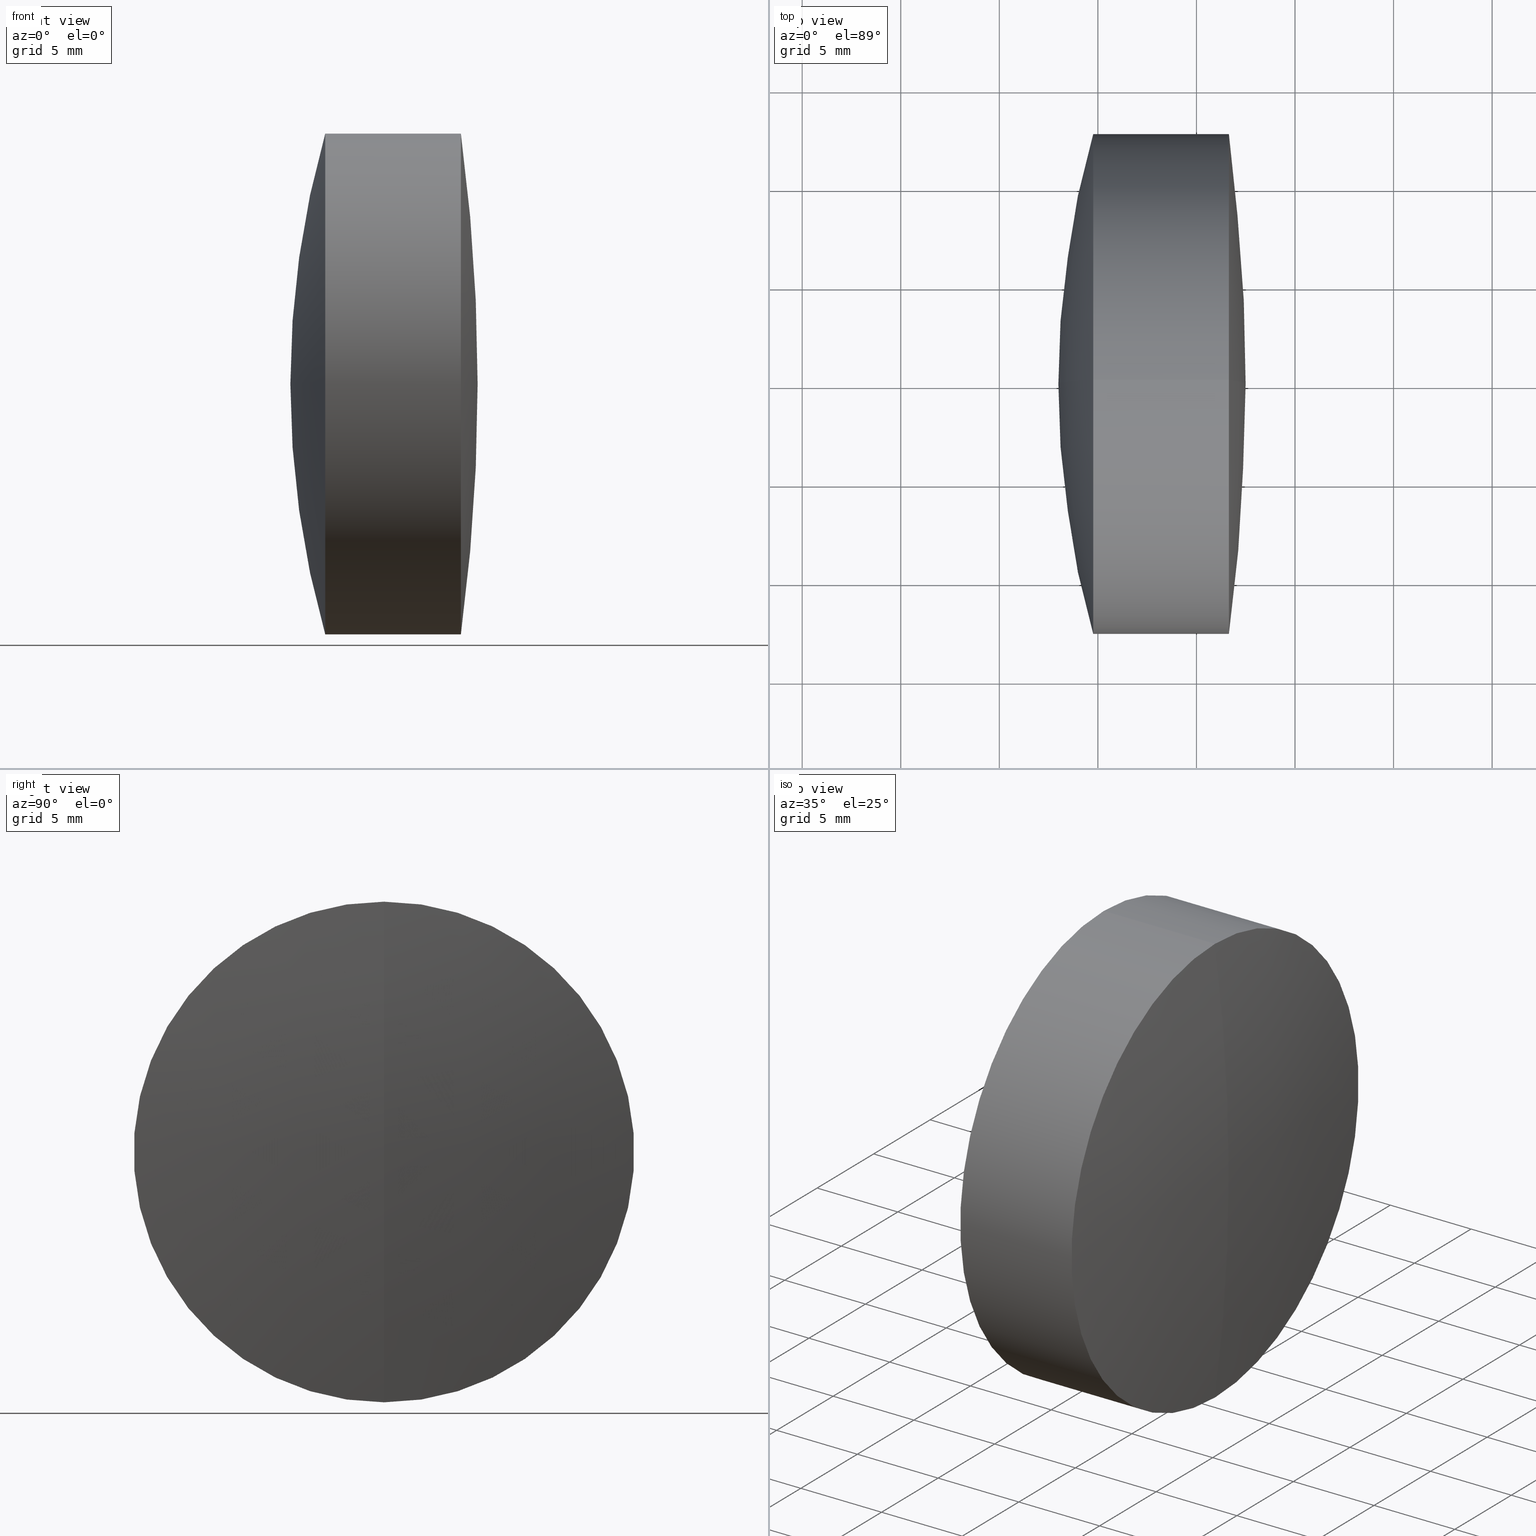
[diagram: canonical four-view strip — front | top / right | iso, engineering-drawing reading convention]
A machine part, canonical four-view strip (front | top / right | iso — engineering-drawing reading convention). The complete STEP part file that produces these views, byte-faithful:
ISO-10303-21;
HEADER;
FILE_DESCRIPTION (( 'STEP AP214' ),
    '1' );
FILE_NAME ('145056.STEP',
    '2019-05-13T08:34:13',
    ( 'user' ),
    ( '΢���й�' ),
    'SwSTEP 2.0',
    'SolidWorks 2016',
    '' );
FILE_SCHEMA (( 'AUTOMOTIVE_DESIGN' ));
ENDSEC;

DATA;
#1 = AXIS2_PLACEMENT_3D ( 'NONE', #251, #217, #246 ) ;
#2 = CARTESIAN_POINT ( 'NONE',  ( 211.0958458084194300, 0.0000000000000000000, -3.185954776904472300E-015 ) ) ;
#3 = EDGE_LOOP ( 'NONE', ( #334, #54, #169, #271 ) ) ;
#4 = DIRECTION ( 'NONE',  ( 0.0000000000000000000, 0.0000000000000000000, 1.000000000000000000 ) ) ;
#5 = AXIS2_PLACEMENT_3D ( 'NONE', #268, #145, #336 ) ;
#6 = DIRECTION ( 'NONE',  ( -1.000000000000000000, -0.0000000000000000000, -0.0000000000000000000 ) ) ;
#7 =( NAMED_UNIT ( * ) PLANE_ANGLE_UNIT ( ) SI_UNIT ( $, .RADIAN. ) );
#8 = AXIS2_PLACEMENT_3D ( 'NONE', #249, #315, #22 ) ;
#9 = PRODUCT_DEFINITION_FORMATION_WITH_SPECIFIED_SOURCE ( '�κ�', '', #265, .NOT_KNOWN. ) ;
#10 = COLOUR_RGB ( '',1.000000000000000000, 1.000000000000000000, 1.000000000000000000 ) ;
#11 = EDGE_CURVE ( 'NONE', #52, #29, #181, .T. ) ;
#12 = ORIENTED_EDGE ( 'NONE', *, *, #70, .F. ) ;
#13 = AXIS2_PLACEMENT_3D ( 'NONE', #302, #214, #212 ) ;
#14 = SURFACE_STYLE_USAGE ( .BOTH. , #194 ) ;
#15 = EDGE_LOOP ( 'NONE', ( #61, #326, #100 ) ) ;
#16 = SPHERICAL_SURFACE ( 'NONE', #86, 33.89999999999998400 ) ;
#17 = AXIS2_PLACEMENT_3D ( 'NONE', #56, #73, #48 ) ;
#18 = ORIENTED_EDGE ( 'NONE', *, *, #301, .F. ) ;
#19 = APPLICATION_PROTOCOL_DEFINITION ( 'draft international standard', 'automotive_design', 1998, #289 ) ;
#20 = DIRECTION ( 'NONE',  ( 0.0000000000000000000, 1.000000000000000000, 0.0000000000000000000 ) ) ;
#21 = ADVANCED_FACE ( 'NONE', ( #78 ), #175, .T. ) ;
#22 = DIRECTION ( 'NONE',  ( 0.0000000000000000000, 0.0000000000000000000, 1.000000000000000000 ) ) ;
#23 = ORIENTED_EDGE ( 'NONE', *, *, #258, .T. ) ;
#24 = CARTESIAN_POINT ( 'NONE',  ( 246.6476286759386200, 0.0000000000000000000, 0.0000000000000000000 ) ) ;
#25 = FILL_AREA_STYLE_COLOUR ( '', #105 ) ;
#26 = EDGE_CURVE ( 'NONE', #96, #280, #209, .T. ) ;
#27 = DIRECTION ( 'NONE',  ( 0.0000000000000000000, 0.0000000000000000000, 1.000000000000000000 ) ) ;
#28 = FILL_AREA_STYLE ('',( #132 ) ) ;
#29 = VERTEX_POINT ( 'NONE', #189 ) ;
#30 = DIRECTION ( 'NONE',  ( 0.0000000000000000000, -1.224646799147353200E-016, 1.000000000000000000 ) ) ;
#31 = CARTESIAN_POINT ( 'NONE',  ( 211.0958458084194300, 0.0000000000000000000, -3.185954776904472300E-015 ) ) ;
#32 = CARTESIAN_POINT ( 'NONE',  ( 211.0958458084194300, 0.0000000000000000000, -3.185954776904472300E-015 ) ) ;
#33 = CIRCLE ( 'NONE', #141, 12.69999999999999600 ) ;
#34 = ORIENTED_EDGE ( 'NONE', *, *, #67, .F. ) ;
#35 = ORIENTED_EDGE ( 'NONE', *, *, #101, .T. ) ;
#36 = FACE_OUTER_BOUND ( 'NONE', #151, .T. ) ;
#37 = ORIENTED_EDGE ( 'NONE', *, *, #193, .T. ) ;
#38 = EDGE_CURVE ( 'NONE', #307, #224, #72, .T. ) ;
#39 = EDGE_LOOP ( 'NONE', ( #285, #299, #45 ) ) ;
#40 = CARTESIAN_POINT ( 'NONE',  ( 161.8331716928335000, 0.0000000000000000000, 0.0000000000000000000 ) ) ;
#41 = AXIS2_PLACEMENT_3D ( 'NONE', #278, #277, #238 ) ;
#42 = DIRECTION ( 'NONE',  ( 0.0000000000000000000, 0.0000000000000000000, -1.000000000000000000 ) ) ;
#43 = UNCERTAINTY_MEASURE_WITH_UNIT (LENGTH_MEASURE( 1.000000000000000100E-005 ), #174, 'distance_accuracy_value', 'NONE');
#44 = CARTESIAN_POINT ( 'NONE',  ( 242.5270405041353300, 0.0000000000000000000, 12.69999999999999200 ) ) ;
#45 = ORIENTED_EDGE ( 'NONE', *, *, #339, .F. ) ;
#46 = VERTEX_POINT ( 'NONE', #158 ) ;
#47 = LINE ( 'NONE', #77, #110 ) ;
#48 = DIRECTION ( 'NONE',  ( 0.0000000000000000000, 0.0000000000000000000, 1.000000000000000000 ) ) ;
#49 = AXIS2_PLACEMENT_3D ( 'NONE', #24, #59, #104 ) ;
#50 = DIRECTION ( 'NONE',  ( -1.000000000000000000, -0.0000000000000000000, -0.0000000000000000000 ) ) ;
#51 =( NAMED_UNIT ( * ) PLANE_ANGLE_UNIT ( ) SI_UNIT ( $, .RADIAN. ) );
#52 = VERTEX_POINT ( 'NONE', #127 ) ;
#53 = UNCERTAINTY_MEASURE_WITH_UNIT (LENGTH_MEASURE( 1.000000000000000100E-005 ), #66, 'distance_accuracy_value', 'NONE');
#54 = ORIENTED_EDGE ( 'NONE', *, *, #235, .T. ) ;
#55 = VERTEX_POINT ( 'NONE', #340 ) ;
#56 = CARTESIAN_POINT ( 'NONE',  ( 284.4958458084194000, 0.0000000000000000000, -3.503633151461065400E-015 ) ) ;
#57 = CIRCLE ( 'NONE', #13, 12.69999999999998900 ) ;
#58 = DIRECTION ( 'NONE',  ( -1.000000000000000000, -0.0000000000000000000, -0.0000000000000000000 ) ) ;
#59 = DIRECTION ( 'NONE',  ( -1.000000000000000000, -0.0000000000000000000, -0.0000000000000000000 ) ) ;
#60 = PRODUCT_DEFINITION_SHAPE ( 'NONE', 'NONE',  #126 ) ;
#61 = ORIENTED_EDGE ( 'NONE', *, *, #173, .F. ) ;
#62 = EDGE_CURVE ( 'NONE', #46, #160, #243, .T. ) ;
#63 = PRESENTATION_LAYER_ASSIGNMENT (  '', '', ( #133 ) ) ;
#64 = CIRCLE ( 'NONE', #188, 46.50000000000003600 ) ;
#65 = SPHERICAL_SURFACE ( 'NONE', #148, 33.89999999999998400 ) ;
#66 =( LENGTH_UNIT ( ) NAMED_UNIT ( * ) SI_UNIT ( .MILLI., .METRE. ) );
#67 = EDGE_CURVE ( 'NONE', #224, #237, #64, .T. ) ;
#68 = COLOUR_RGB ( '',1.000000000000000000, 1.000000000000000000, 1.000000000000000000 ) ;
#69 = SURFACE_SIDE_STYLE ('',( #90 ) ) ;
#70 = EDGE_CURVE ( 'NONE', #46, #259, #284, .T. ) ;
#71 = ORIENTED_EDGE ( 'NONE', *, *, #82, .T. ) ;
#72 = CIRCLE ( 'NONE', #229, 12.69999999999999600 ) ;
#73 = DIRECTION ( 'NONE',  ( 0.0000000000000000000, 1.000000000000000000, 0.0000000000000000000 ) ) ;
#74 = EDGE_CURVE ( 'NONE', #224, #307, #186, .T. ) ;
#75 = CARTESIAN_POINT ( 'NONE',  ( 211.0958458084194300, 0.0000000000000000000, -3.185954776904472300E-015 ) ) ;
#76 = PRODUCT_RELATED_PRODUCT_CATEGORY ( 'part', '', ( #265 ) ) ;
#77 = CARTESIAN_POINT ( 'NONE',  ( 161.8331716928335000, 1.555301434917138000E-015, -12.69999999999999600 ) ) ;
#78 = FACE_OUTER_BOUND ( 'NONE', #39, .T. ) ;
#79 = EDGE_LOOP ( 'NONE', ( #219, #195, #295 ) ) ;
#80 = SURFACE_SIDE_STYLE ('',( #129 ) ) ;
#81 = CIRCLE ( 'NONE', #109, 12.69999999999999200 ) ;
#82 = EDGE_CURVE ( 'NONE', #259, #224, #179, .T. ) ;
#83 = DIRECTION ( 'NONE',  ( 0.0000000000000000000, 0.0000000000000000000, 1.000000000000000000 ) ) ;
#84 = UNCERTAINTY_MEASURE_WITH_UNIT (LENGTH_MEASURE( 1.000000000000000100E-005 ), #116, 'distance_accuracy_value', 'NONE');
#85 = ADVANCED_BREP_SHAPE_REPRESENTATION ( '145056', ( #269, #333, #5 ), #232 ) ;
#86 = AXIS2_PLACEMENT_3D ( 'NONE', #190, #163, #264 ) ;
#87 = DIRECTION ( 'NONE',  ( -1.000000000000000000, -0.0000000000000000000, -0.0000000000000000000 ) ) ;
#88 = DIRECTION ( 'NONE',  ( 0.0000000000000000000, -1.224646799147353200E-016, 1.000000000000000000 ) ) ;
#89 = FACE_OUTER_BOUND ( 'NONE', #15, .T. ) ;
#90 = SURFACE_STYLE_FILL_AREA ( #245 ) ;
#91 = FACE_OUTER_BOUND ( 'NONE', #3, .T. ) ;
#92 = AXIS2_PLACEMENT_3D ( 'NONE', #253, #294, #316 ) ;
#93 = FACE_OUTER_BOUND ( 'NONE', #79, .T. ) ;
#94 = CARTESIAN_POINT ( 'NONE',  ( 211.0958458084194300, 0.0000000000000000000, -3.185954776904472300E-015 ) ) ;
#95 = AXIS2_PLACEMENT_3D ( 'NONE', #31, #20, #298 ) ;
#96 = VERTEX_POINT ( 'NONE', #240 ) ;
#97 = CARTESIAN_POINT ( 'NONE',  ( 239.7637544197977200, 0.0000000000000000000, 0.0000000000000000000 ) ) ;
#98 = ADVANCED_FACE ( 'NONE', ( #227 ), #226, .T. ) ;
#99 = DIRECTION ( 'NONE',  ( 0.0000000000000000000, -1.000000000000000000, 0.0000000000000000000 ) ) ;
#100 = ORIENTED_EDGE ( 'NONE', *, *, #327, .T. ) ;
#101 = EDGE_CURVE ( 'NONE', #307, #237, #203, .T. ) ;
#102 = ORIENTED_EDGE ( 'NONE', *, *, #327, .F. ) ;
#103 = CARTESIAN_POINT ( 'NONE',  ( 151.9958458084194000, 0.0000000000000000000, 0.0000000000000000000 ) ) ;
#104 = DIRECTION ( 'NONE',  ( 0.0000000000000000000, 0.0000000000000000000, 1.000000000000000000 ) ) ;
#105 = COLOUR_RGB ( '',1.000000000000000000, 1.000000000000000000, 1.000000000000000000 ) ;
#106 = AXIS2_PLACEMENT_3D ( 'NONE', #94, #99, #42 ) ;
#107 = ORIENTED_EDGE ( 'NONE', *, *, #11, .F. ) ;
#108 = CARTESIAN_POINT ( 'NONE',  ( 242.5270405041353300, 1.555301434917138000E-015, -12.69999999999999600 ) ) ;
#109 = AXIS2_PLACEMENT_3D ( 'NONE', #172, #261, #117 ) ;
#110 = VECTOR ( 'NONE', #128, 1000.000000000000000 ) ;
#111 = ORIENTED_EDGE ( 'NONE', *, *, #193, .F. ) ;
#112 = AXIS2_PLACEMENT_3D ( 'NONE', #152, #322, #255 ) ;
#113 = ADVANCED_FACE ( 'NONE', ( #342 ), #16, .T. ) ;
#114 = AXIS2_PLACEMENT_3D ( 'NONE', #184, #346, #27 ) ;
#115 = ORIENTED_EDGE ( 'NONE', *, *, #173, .T. ) ;
#116 =( LENGTH_UNIT ( ) NAMED_UNIT ( * ) SI_UNIT ( .MILLI., .METRE. ) );
#117 = DIRECTION ( 'NONE',  ( 0.0000000000000000000, 0.0000000000000000000, 1.000000000000000000 ) ) ;
#118 = VECTOR ( 'NONE', #58, 1000.000000000000000 ) ;
#119 = APPLICATION_PROTOCOL_DEFINITION ( 'draft international standard', 'automotive_design', 1998, #191 ) ;
#120 = DIRECTION ( 'NONE',  ( -1.000000000000000000, -0.0000000000000000000, -0.0000000000000000000 ) ) ;
#121 = CARTESIAN_POINT ( 'NONE',  ( 151.9958458084194000, 0.0000000000000000000, 0.0000000000000000000 ) ) ;
#122 = CARTESIAN_POINT ( 'NONE',  ( 239.7637544197977200, 0.0000000000000000000, 12.69999999999999900 ) ) ;
#123 = AXIS2_PLACEMENT_3D ( 'NONE', #2, #311, #130 ) ;
#124 = ADVANCED_FACE ( 'NONE', ( #296 ), #135, .F. ) ;
#125 = CYLINDRICAL_SURFACE ( 'NONE', #112, 12.69999999999999000 ) ;
#126 = PRODUCT_DEFINITION ( 'δ֪', '', #9, #143 ) ;
#127 = CARTESIAN_POINT ( 'NONE',  ( 246.6476286759386200, 1.555301434917137400E-015, -12.69999999999998900 ) ) ;
#128 = DIRECTION ( 'NONE',  ( -1.000000000000000000, -0.0000000000000000000, -0.0000000000000000000 ) ) ;
#129 = SURFACE_STYLE_FILL_AREA ( #28 ) ;
#130 = DIRECTION ( 'NONE',  ( 0.0000000000000000000, 0.0000000000000000000, 1.000000000000000000 ) ) ;
#131 =( NAMED_UNIT ( * ) SI_UNIT ( $, .STERADIAN. ) SOLID_ANGLE_UNIT ( ) );
#132 = FILL_AREA_STYLE_COLOUR ( '', #68 ) ;
#133 = STYLED_ITEM ( 'NONE', ( #223 ), #269 ) ;
#134 = DIRECTION ( 'NONE',  ( 0.0000000000000000000, 0.0000000000000000000, 1.000000000000000000 ) ) ;
#135 = SPHERICAL_SURFACE ( 'NONE', #123, 33.89999999999998400 ) ;
#136 = CLOSED_SHELL ( 'NONE', ( #300, #230, #124, #137, #202, #98 ) ) ;
#137 = ADVANCED_FACE ( 'NONE', ( #89 ), #65, .F. ) ;
#138 = MECHANICAL_DESIGN_GEOMETRIC_PRESENTATION_REPRESENTATION (  '', ( #133 ), #200 ) ;
#139 = CARTESIAN_POINT ( 'NONE',  ( 161.8331716928335000, 0.0000000000000000000, 0.0000000000000000000 ) ) ;
#140 = CYLINDRICAL_SURFACE ( 'NONE', #213, 12.69999999999999600 ) ;
#141 = AXIS2_PLACEMENT_3D ( 'NONE', #303, #204, #304 ) ;
#142 =( GEOMETRIC_REPRESENTATION_CONTEXT ( 3 ) GLOBAL_UNCERTAINTY_ASSIGNED_CONTEXT ( ( #43 ) ) GLOBAL_UNIT_ASSIGNED_CONTEXT ( ( #174, #51, #131 ) ) REPRESENTATION_CONTEXT ( 'NONE', 'WORKASPACE' ) );
#143 = PRODUCT_DEFINITION_CONTEXT ( 'detailed design', #289, 'design' ) ;
#144 = ORIENTED_EDGE ( 'NONE', *, *, #309, .T. ) ;
#145 = DIRECTION ( 'NONE',  ( 0.0000000000000000000, 0.0000000000000000000, 1.000000000000000000 ) ) ;
#146 = STYLED_ITEM ( 'NONE', ( #247 ), #333 ) ;
#147 = SPHERICAL_SURFACE ( 'NONE', #92, 95.50000000000001400 ) ;
#148 = AXIS2_PLACEMENT_3D ( 'NONE', #263, #256, #83 ) ;
#149 = CIRCLE ( 'NONE', #8, 12.69999999999999200 ) ;
#150 = DIRECTION ( 'NONE',  ( -1.000000000000000000, -0.0000000000000000000, -0.0000000000000000000 ) ) ;
#151 = EDGE_LOOP ( 'NONE', ( #233, #267, #239, #208 ) ) ;
#152 = CARTESIAN_POINT ( 'NONE',  ( -0.5519199926577972300, 0.0000000000000000000, 0.0000000000000000000 ) ) ;
#153 = CARTESIAN_POINT ( 'NONE',  ( 237.9958458084193800, 0.0000000000000000000, -6.563293434434670700E-016 ) ) ;
#154 = AXIS2_PLACEMENT_3D ( 'NONE', #242, #272, #88 ) ;
#155 = SPHERICAL_SURFACE ( 'NONE', #17, 46.50000000000003600 ) ;
#156 = DIRECTION ( 'NONE',  ( 0.0000000000000000000, -1.000000000000000000, 0.0000000000000000000 ) ) ;
#157 =( GEOMETRIC_REPRESENTATION_CONTEXT ( 3 ) GLOBAL_UNCERTAINTY_ASSIGNED_CONTEXT ( ( #84 ) ) GLOBAL_UNIT_ASSIGNED_CONTEXT ( ( #116, #286, #332 ) ) REPRESENTATION_CONTEXT ( 'NONE', 'WORKASPACE' ) );
#158 = CARTESIAN_POINT ( 'NONE',  ( 244.9958458084194000, 0.0000000000000000000, -1.110178452349709700E-015 ) ) ;
#159 = CARTESIAN_POINT ( 'NONE',  ( 239.7637544197977200, 1.555301434917138400E-015, -12.70000000000000300 ) ) ;
#160 = VERTEX_POINT ( 'NONE', #108 ) ;
#161 = CARTESIAN_POINT ( 'NONE',  ( 161.8331716928335000, 0.0000000000000000000, 12.69999999999999600 ) ) ;
#162 = AXIS2_PLACEMENT_3D ( 'NONE', #121, #165, #176 ) ;
#163 = DIRECTION ( 'NONE',  ( 0.0000000000000000000, 1.000000000000000000, 0.0000000000000000000 ) ) ;
#164 = VECTOR ( 'NONE', #6, 1000.000000000000000 ) ;
#165 = DIRECTION ( 'NONE',  ( -0.0000000000000000000, 1.000000000000000000, 1.224646799147353200E-016 ) ) ;
#166 = AXIS2_PLACEMENT_3D ( 'NONE', #187, #150, #248 ) ;
#167 = ORIENTED_EDGE ( 'NONE', *, *, #282, .F. ) ;
#168 = ADVANCED_FACE ( 'NONE', ( #91 ), #335, .T. ) ;
#169 = ORIENTED_EDGE ( 'NONE', *, *, #74, .F. ) ;
#170 = EDGE_LOOP ( 'NONE', ( #262, #35, #34 ) ) ;
#171 = PRESENTATION_LAYER_ASSIGNMENT (  '', '', ( #257 ) ) ;
#172 = CARTESIAN_POINT ( 'NONE',  ( 242.5270405041353300, 0.0000000000000000000, 0.0000000000000000000 ) ) ;
#173 = EDGE_CURVE ( 'NONE', #96, #55, #276, .T. ) ;
#174 =( LENGTH_UNIT ( ) NAMED_UNIT ( * ) SI_UNIT ( .MILLI., .METRE. ) );
#175 = SPHERICAL_SURFACE ( 'NONE', #95, 33.89999999999998400 ) ;
#176 = DIRECTION ( 'NONE',  ( 0.0000000000000000000, -1.224646799147353200E-016, 1.000000000000000000 ) ) ;
#177 = CARTESIAN_POINT ( 'NONE',  ( -0.5519199926577972300, 0.0000000000000000000, 12.69999999999999000 ) ) ;
#178 = CIRCLE ( 'NONE', #114, 12.69999999999999600 ) ;
#179 = LINE ( 'NONE', #161, #164 ) ;
#180 = CARTESIAN_POINT ( 'NONE',  ( 247.4958458084194300, 0.0000000000000000000, 5.847688465928612800E-015 ) ) ;
#181 = CIRCLE ( 'NONE', #49, 12.69999999999998900 ) ;
#182 = ORIENTED_EDGE ( 'NONE', *, *, #62, .T. ) ;
#183 = AXIS2_PLACEMENT_3D ( 'NONE', #75, #206, #199 ) ;
#184 = CARTESIAN_POINT ( 'NONE',  ( 242.5270405041353300, 0.0000000000000000000, 0.0000000000000000000 ) ) ;
#185 = CARTESIAN_POINT ( 'NONE',  ( 239.7637544197977200, 0.0000000000000000000, 0.0000000000000000000 ) ) ;
#186 = CIRCLE ( 'NONE', #221, 12.69999999999999600 ) ;
#187 = CARTESIAN_POINT ( 'NONE',  ( -0.5519199926577972300, 0.0000000000000000000, 0.0000000000000000000 ) ) ;
#188 = AXIS2_PLACEMENT_3D ( 'NONE', #216, #225, #343 ) ;
#189 = CARTESIAN_POINT ( 'NONE',  ( 246.6476286759386200, 0.0000000000000000000, 12.69999999999998900 ) ) ;
#190 = CARTESIAN_POINT ( 'NONE',  ( 211.0958458084194300, 0.0000000000000000000, -3.185954776904472300E-015 ) ) ;
#191 = APPLICATION_CONTEXT ( 'automotive_design' ) ;
#192 = CYLINDRICAL_SURFACE ( 'NONE', #166, 12.69999999999999000 ) ;
#193 = EDGE_CURVE ( 'NONE', #317, #52, #260, .T. ) ;
#194 = SURFACE_SIDE_STYLE ('',( #313 ) ) ;
#195 = ORIENTED_EDGE ( 'NONE', *, *, #38, .T. ) ;
#196 = ORIENTED_EDGE ( 'NONE', *, *, #344, .T. ) ;
#197 = EDGE_LOOP ( 'NONE', ( #215, #201, #71, #321 ) ) ;
#198 = ORIENTED_EDGE ( 'NONE', *, *, #241, .T. ) ;
#199 = DIRECTION ( 'NONE',  ( 0.0000000000000000000, -1.224646799147353200E-016, 1.000000000000000000 ) ) ;
#200 =( GEOMETRIC_REPRESENTATION_CONTEXT ( 3 ) GLOBAL_UNCERTAINTY_ASSIGNED_CONTEXT ( ( #281 ) ) GLOBAL_UNIT_ASSIGNED_CONTEXT ( ( #220, #274, #318 ) ) REPRESENTATION_CONTEXT ( 'NONE', 'WORKASPACE' ) );
#201 = ORIENTED_EDGE ( 'NONE', *, *, #339, .T. ) ;
#202 = ADVANCED_FACE ( 'NONE', ( #36 ), #125, .T. ) ;
#203 = CIRCLE ( 'NONE', #154, 46.50000000000003600 ) ;
#204 = DIRECTION ( 'NONE',  ( -1.000000000000000000, -0.0000000000000000000, -0.0000000000000000000 ) ) ;
#205 = FILL_AREA_STYLE_COLOUR ( '', #10 ) ;
#206 = DIRECTION ( 'NONE',  ( -0.0000000000000000000, 1.000000000000000000, 1.224646799147353200E-016 ) ) ;
#207 = ADVANCED_FACE ( 'NONE', ( #329 ), #155, .T. ) ;
#208 = ORIENTED_EDGE ( 'NONE', *, *, #309, .F. ) ;
#209 = CIRCLE ( 'NONE', #106, 33.89999999999998400 ) ;
#210 = DIRECTION ( 'NONE',  ( -1.000000000000000000, -0.0000000000000000000, -0.0000000000000000000 ) ) ;
#211 = CARTESIAN_POINT ( 'NONE',  ( 242.5270405041353300, 0.0000000000000000000, 12.69999999999999600 ) ) ;
#212 = DIRECTION ( 'NONE',  ( 0.0000000000000000000, 0.0000000000000000000, 1.000000000000000000 ) ) ;
#213 = AXIS2_PLACEMENT_3D ( 'NONE', #139, #210, #319 ) ;
#214 = DIRECTION ( 'NONE',  ( -1.000000000000000000, -0.0000000000000000000, -0.0000000000000000000 ) ) ;
#215 = ORIENTED_EDGE ( 'NONE', *, *, #235, .F. ) ;
#216 = CARTESIAN_POINT ( 'NONE',  ( 284.4958458084194000, 0.0000000000000000000, -3.503633151461065400E-015 ) ) ;
#217 = DIRECTION ( 'NONE',  ( 0.0000000000000000000, 1.000000000000000000, 0.0000000000000000000 ) ) ;
#218 = DIRECTION ( 'NONE',  ( 0.0000000000000000000, 0.0000000000000000000, 1.000000000000000000 ) ) ;
#219 = ORIENTED_EDGE ( 'NONE', *, *, #101, .F. ) ;
#220 =( LENGTH_UNIT ( ) NAMED_UNIT ( * ) SI_UNIT ( .MILLI., .METRE. ) );
#221 = AXIS2_PLACEMENT_3D ( 'NONE', #97, #87, #134 ) ;
#222 = DIRECTION ( 'NONE',  ( -0.0000000000000000000, 1.000000000000000000, 1.224646799147353200E-016 ) ) ;
#223 = PRESENTATION_STYLE_ASSIGNMENT (( #244 ) ) ;
#224 = VERTEX_POINT ( 'NONE', #122 ) ;
#225 = DIRECTION ( 'NONE',  ( 0.0000000000000000000, -1.000000000000000000, 0.0000000000000000000 ) ) ;
#226 = SPHERICAL_SURFACE ( 'NONE', #1, 95.50000000000001400 ) ;
#227 = FACE_OUTER_BOUND ( 'NONE', #283, .T. ) ;
#228 = ORIENTED_EDGE ( 'NONE', *, *, #258, .F. ) ;
#229 = AXIS2_PLACEMENT_3D ( 'NONE', #185, #120, #218 ) ;
#230 = ADVANCED_FACE ( 'NONE', ( #266 ), #192, .T. ) ;
#231 = ORIENTED_EDGE ( 'NONE', *, *, #26, .F. ) ;
#232 =( GEOMETRIC_REPRESENTATION_CONTEXT ( 3 ) GLOBAL_UNCERTAINTY_ASSIGNED_CONTEXT ( ( #53 ) ) GLOBAL_UNIT_ASSIGNED_CONTEXT ( ( #66, #7, #345 ) ) REPRESENTATION_CONTEXT ( 'NONE', 'WORKASPACE' ) );
#233 = ORIENTED_EDGE ( 'NONE', *, *, #344, .F. ) ;
#234 = CARTESIAN_POINT ( 'NONE',  ( -0.5519199926577972300, 1.555301434917137400E-015, -12.69999999999999000 ) ) ;
#235 = EDGE_CURVE ( 'NONE', #160, #307, #47, .T. ) ;
#236 = FACE_OUTER_BOUND ( 'NONE', #197, .T. ) ;
#237 = VERTEX_POINT ( 'NONE', #153 ) ;
#238 = DIRECTION ( 'NONE',  ( 0.0000000000000000000, 0.0000000000000000000, -1.000000000000000000 ) ) ;
#239 = ORIENTED_EDGE ( 'NONE', *, *, #282, .T. ) ;
#240 = CARTESIAN_POINT ( 'NONE',  ( 244.9958458084194000, 0.0000000000000000000, -1.110178452349709700E-015 ) ) ;
#241 = EDGE_CURVE ( 'NONE', #29, #52, #57, .T. ) ;
#242 = CARTESIAN_POINT ( 'NONE',  ( 284.4958458084194000, 0.0000000000000000000, -3.503633151461065400E-015 ) ) ;
#243 = CIRCLE ( 'NONE', #183, 33.89999999999998400 ) ;
#244 = SURFACE_STYLE_USAGE ( .BOTH. , #80 ) ;
#245 = FILL_AREA_STYLE ('',( #205 ) ) ;
#246 = DIRECTION ( 'NONE',  ( 0.0000000000000000000, 0.0000000000000000000, 1.000000000000000000 ) ) ;
#247 = PRESENTATION_STYLE_ASSIGNMENT (( #310 ) ) ;
#248 = DIRECTION ( 'NONE',  ( 0.0000000000000000000, 0.0000000000000000000, 1.000000000000000000 ) ) ;
#249 = CARTESIAN_POINT ( 'NONE',  ( 242.5270405041353300, 0.0000000000000000000, 0.0000000000000000000 ) ) ;
#250 = EDGE_LOOP ( 'NONE', ( #198, #196, #102, #167 ) ) ;
#251 = CARTESIAN_POINT ( 'NONE',  ( 151.9958458084194000, 0.0000000000000000000, 0.0000000000000000000 ) ) ;
#252 = AXIS2_PLACEMENT_3D ( 'NONE', #40, #328, #273 ) ;
#253 = CARTESIAN_POINT ( 'NONE',  ( 151.9958458084194000, 0.0000000000000000000, 0.0000000000000000000 ) ) ;
#254 = LINE ( 'NONE', #177, #292 ) ;
#255 = DIRECTION ( 'NONE',  ( 0.0000000000000000000, 0.0000000000000000000, 1.000000000000000000 ) ) ;
#256 = DIRECTION ( 'NONE',  ( 0.0000000000000000000, 1.000000000000000000, 0.0000000000000000000 ) ) ;
#257 = STYLED_ITEM ( 'NONE', ( #323 ), #85 ) ;
#258 = EDGE_CURVE ( 'NONE', #317, #29, #338, .T. ) ;
#259 = VERTEX_POINT ( 'NONE', #211 ) ;
#260 = CIRCLE ( 'NONE', #162, 95.50000000000001400 ) ;
#261 = DIRECTION ( 'NONE',  ( -1.000000000000000000, -0.0000000000000000000, -0.0000000000000000000 ) ) ;
#262 = ORIENTED_EDGE ( 'NONE', *, *, #74, .T. ) ;
#263 = CARTESIAN_POINT ( 'NONE',  ( 211.0958458084194300, 0.0000000000000000000, -3.185954776904472300E-015 ) ) ;
#264 = DIRECTION ( 'NONE',  ( 0.0000000000000000000, 0.0000000000000000000, 1.000000000000000000 ) ) ;
#265 = PRODUCT ( '145056', '145056', '', ( #330 ) ) ;
#266 = FACE_OUTER_BOUND ( 'NONE', #250, .T. ) ;
#267 = ORIENTED_EDGE ( 'NONE', *, *, #11, .T. ) ;
#268 = CARTESIAN_POINT ( 'NONE',  ( 0.0000000000000000000, 0.0000000000000000000, 0.0000000000000000000 ) ) ;
#269 = MANIFOLD_SOLID_BREP ( '��ת1', #341 ) ;
#270 = FILL_AREA_STYLE ('',( #25 ) ) ;
#271 = ORIENTED_EDGE ( 'NONE', *, *, #82, .F. ) ;
#272 = DIRECTION ( 'NONE',  ( -0.0000000000000000000, 1.000000000000000000, 1.224646799147353200E-016 ) ) ;
#273 = DIRECTION ( 'NONE',  ( 0.0000000000000000000, 0.0000000000000000000, 1.000000000000000000 ) ) ;
#274 =( NAMED_UNIT ( * ) PLANE_ANGLE_UNIT ( ) SI_UNIT ( $, .RADIAN. ) );
#275 = ORIENTED_EDGE ( 'NONE', *, *, #241, .F. ) ;
#276 = CIRCLE ( 'NONE', #331, 33.89999999999998400 ) ;
#277 = DIRECTION ( 'NONE',  ( 0.0000000000000000000, -1.000000000000000000, 0.0000000000000000000 ) ) ;
#278 = CARTESIAN_POINT ( 'NONE',  ( 211.0958458084194300, 0.0000000000000000000, -3.185954776904472300E-015 ) ) ;
#279 = SPHERICAL_SURFACE ( 'NONE', #337, 46.50000000000003600 ) ;
#280 = VERTEX_POINT ( 'NONE', #44 ) ;
#281 = UNCERTAINTY_MEASURE_WITH_UNIT (LENGTH_MEASURE( 1.000000000000000100E-005 ), #220, 'distance_accuracy_value', 'NONE');
#282 = EDGE_CURVE ( 'NONE', #29, #280, #254, .T. ) ;
#283 = EDGE_LOOP ( 'NONE', ( #111, #23, #107 ) ) ;
#284 = CIRCLE ( 'NONE', #41, 33.89999999999998400 ) ;
#285 = ORIENTED_EDGE ( 'NONE', *, *, #62, .F. ) ;
#286 =( NAMED_UNIT ( * ) PLANE_ANGLE_UNIT ( ) SI_UNIT ( $, .RADIAN. ) );
#287 = PRESENTATION_LAYER_ASSIGNMENT (  '', '', ( #146 ) ) ;
#288 = EDGE_LOOP ( 'NONE', ( #228, #37, #275 ) ) ;
#289 = APPLICATION_CONTEXT ( 'automotive_design' ) ;
#290 = EDGE_LOOP ( 'NONE', ( #12, #182, #18 ) ) ;
#291 = MECHANICAL_DESIGN_GEOMETRIC_PRESENTATION_REPRESENTATION (  '', ( #146 ), #157 ) ;
#292 = VECTOR ( 'NONE', #50, 1000.000000000000000 ) ;
#293 = EDGE_LOOP ( 'NONE', ( #231, #115, #144 ) ) ;
#294 = DIRECTION ( 'NONE',  ( 0.0000000000000000000, 1.000000000000000000, 0.0000000000000000000 ) ) ;
#295 = ORIENTED_EDGE ( 'NONE', *, *, #67, .T. ) ;
#296 = FACE_OUTER_BOUND ( 'NONE', #293, .T. ) ;
#297 = AXIS2_PLACEMENT_3D ( 'NONE', #103, #156, #324 ) ;
#298 = DIRECTION ( 'NONE',  ( 0.0000000000000000000, 0.0000000000000000000, 1.000000000000000000 ) ) ;
#299 = ORIENTED_EDGE ( 'NONE', *, *, #70, .T. ) ;
#300 = ADVANCED_FACE ( 'NONE', ( #325 ), #147, .T. ) ;
#301 = EDGE_CURVE ( 'NONE', #259, #160, #178, .T. ) ;
#302 = CARTESIAN_POINT ( 'NONE',  ( 246.6476286759386200, 0.0000000000000000000, 0.0000000000000000000 ) ) ;
#303 = CARTESIAN_POINT ( 'NONE',  ( 242.5270405041353300, 0.0000000000000000000, 0.0000000000000000000 ) ) ;
#304 = DIRECTION ( 'NONE',  ( 0.0000000000000000000, 0.0000000000000000000, 1.000000000000000000 ) ) ;
#305 = CARTESIAN_POINT ( 'NONE',  ( 284.4958458084194000, 0.0000000000000000000, -3.503633151461065400E-015 ) ) ;
#306 = MECHANICAL_DESIGN_GEOMETRIC_PRESENTATION_REPRESENTATION (  '', ( #257 ), #142 ) ;
#307 = VERTEX_POINT ( 'NONE', #159 ) ;
#308 = ADVANCED_FACE ( 'NONE', ( #236 ), #140, .T. ) ;
#309 = EDGE_CURVE ( 'NONE', #55, #280, #81, .T. ) ;
#310 = SURFACE_STYLE_USAGE ( .BOTH. , #69 ) ;
#311 = DIRECTION ( 'NONE',  ( 0.0000000000000000000, 1.000000000000000000, 0.0000000000000000000 ) ) ;
#312 = LINE ( 'NONE', #234, #118 ) ;
#313 = SURFACE_STYLE_FILL_AREA ( #270 ) ;
#314 = ADVANCED_FACE ( 'NONE', ( #93 ), #279, .T. ) ;
#315 = DIRECTION ( 'NONE',  ( -1.000000000000000000, -0.0000000000000000000, -0.0000000000000000000 ) ) ;
#316 = DIRECTION ( 'NONE',  ( 0.0000000000000000000, 0.0000000000000000000, 1.000000000000000000 ) ) ;
#317 = VERTEX_POINT ( 'NONE', #180 ) ;
#318 =( NAMED_UNIT ( * ) SI_UNIT ( $, .STERADIAN. ) SOLID_ANGLE_UNIT ( ) );
#319 = DIRECTION ( 'NONE',  ( 0.0000000000000000000, 0.0000000000000000000, 1.000000000000000000 ) ) ;
#320 = SHAPE_DEFINITION_REPRESENTATION ( #60, #85 ) ;
#321 = ORIENTED_EDGE ( 'NONE', *, *, #38, .F. ) ;
#322 = DIRECTION ( 'NONE',  ( -1.000000000000000000, -0.0000000000000000000, -0.0000000000000000000 ) ) ;
#323 = PRESENTATION_STYLE_ASSIGNMENT (( #14 ) ) ;
#324 = DIRECTION ( 'NONE',  ( 0.0000000000000000000, 0.0000000000000000000, -1.000000000000000000 ) ) ;
#325 = FACE_OUTER_BOUND ( 'NONE', #288, .T. ) ;
#326 = ORIENTED_EDGE ( 'NONE', *, *, #26, .T. ) ;
#327 = EDGE_CURVE ( 'NONE', #280, #55, #149, .T. ) ;
#328 = DIRECTION ( 'NONE',  ( -1.000000000000000000, -0.0000000000000000000, -0.0000000000000000000 ) ) ;
#329 = FACE_OUTER_BOUND ( 'NONE', #170, .T. ) ;
#330 = PRODUCT_CONTEXT ( 'NONE', #191, 'mechanical' ) ;
#331 = AXIS2_PLACEMENT_3D ( 'NONE', #32, #222, #30 ) ;
#332 =( NAMED_UNIT ( * ) SI_UNIT ( $, .STERADIAN. ) SOLID_ANGLE_UNIT ( ) );
#333 = MANIFOLD_SOLID_BREP ( '��ת3', #136 ) ;
#334 = ORIENTED_EDGE ( 'NONE', *, *, #301, .T. ) ;
#335 = CYLINDRICAL_SURFACE ( 'NONE', #252, 12.69999999999999600 ) ;
#336 = DIRECTION ( 'NONE',  ( 1.000000000000000000, 0.0000000000000000000, 0.0000000000000000000 ) ) ;
#337 = AXIS2_PLACEMENT_3D ( 'NONE', #305, #347, #4 ) ;
#338 = CIRCLE ( 'NONE', #297, 95.50000000000001400 ) ;
#339 = EDGE_CURVE ( 'NONE', #160, #259, #33, .T. ) ;
#340 = CARTESIAN_POINT ( 'NONE',  ( 242.5270405041353300, 1.555301434917137800E-015, -12.69999999999999600 ) ) ;
#341 = CLOSED_SHELL ( 'NONE', ( #113, #168, #207, #314, #308, #21 ) ) ;
#342 = FACE_OUTER_BOUND ( 'NONE', #290, .T. ) ;
#343 = DIRECTION ( 'NONE',  ( 0.0000000000000000000, 0.0000000000000000000, -1.000000000000000000 ) ) ;
#344 = EDGE_CURVE ( 'NONE', #52, #55, #312, .T. ) ;
#345 =( NAMED_UNIT ( * ) SI_UNIT ( $, .STERADIAN. ) SOLID_ANGLE_UNIT ( ) );
#346 = DIRECTION ( 'NONE',  ( -1.000000000000000000, -0.0000000000000000000, -0.0000000000000000000 ) ) ;
#347 = DIRECTION ( 'NONE',  ( 0.0000000000000000000, 1.000000000000000000, 0.0000000000000000000 ) ) ;
ENDSEC;
END-ISO-10303-21;
